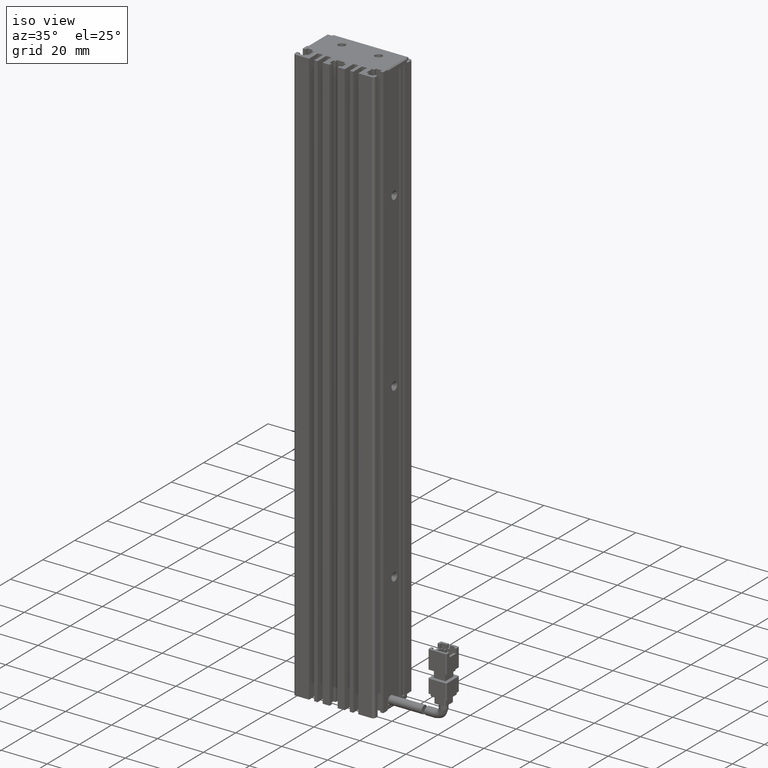
[diagram: clean part render]
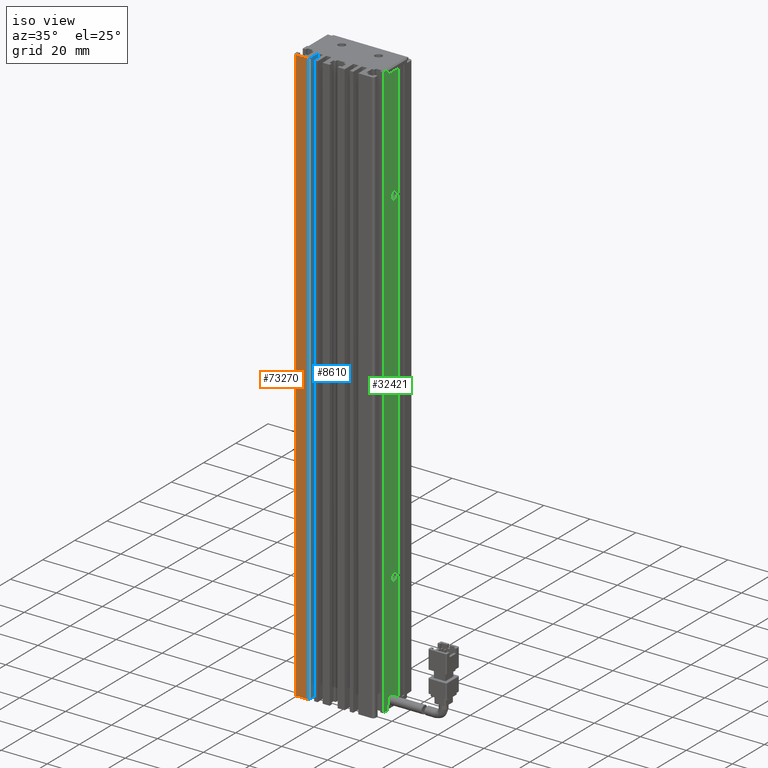
[diagram: same view with three faces highlighted in distinct colors, each labeled with its STEP entity id]
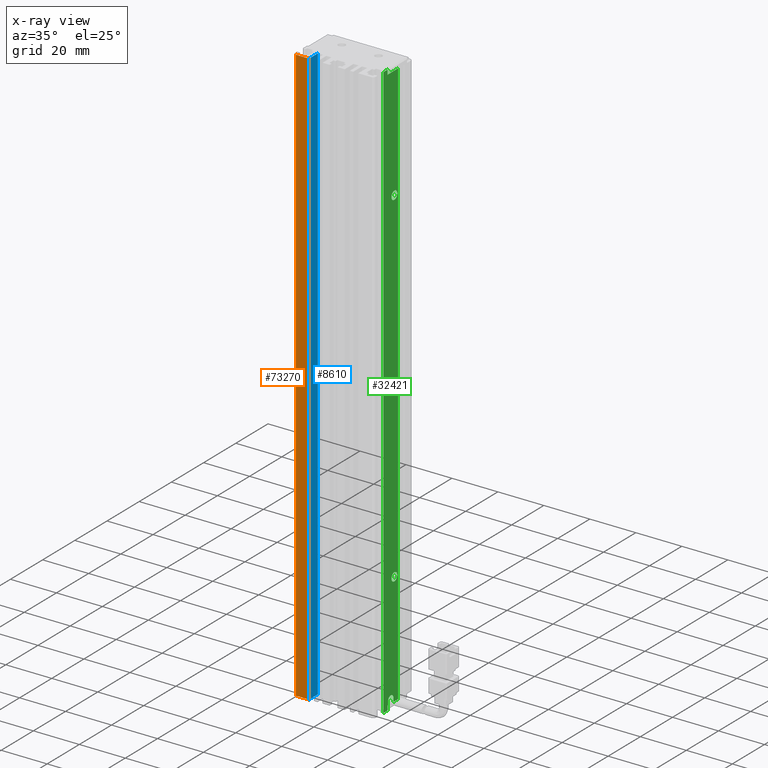
[diagram: x-ray of the same camera — body ghosted, the three highlighted faces saturated]
A machine part, iso view with three faces highlighted in distinct colors.
The next image is the same camera in x-ray (body ghosted, the three faces saturated) — at least one of them is partly hidden behind the body in this view.
Their STEP definitions:

[orange] entity #73270 — the highlighted planar face has unit normal (-0, -1, 0).
#3809 = PLANE ( 'NONE',  #49397 ) ;
#5972 = CARTESIAN_POINT ( 'NONE',  ( 40.92537974683542500, 10.99073232304837000, 10.99999999999999600 ) ) ;
#6949 = DIRECTION ( 'NONE',  ( 1.000000000000000000, 0.0000000000000000000, -0.0000000000000000000 ) ) ;
#7249 = LINE ( 'NONE', #41921, #34055 ) ;
#9640 = EDGE_LOOP ( 'NONE', ( #81355, #43454, #56949, #62938 ) ) ;
#13581 = CARTESIAN_POINT ( 'NONE',  ( 30.22537974683542900, 10.99073232304837000, -241.0000000000000000 ) ) ;
#19664 = DIRECTION ( 'NONE',  ( 0.0000000000000000000, -0.0000000000000000000, -1.000000000000000000 ) ) ;
#26720 = VECTOR ( 'NONE', #85367, 1000.000000000000000 ) ;
#34055 = VECTOR ( 'NONE', #19664, 1000.000000000000000 ) ;
#35323 = EDGE_CURVE ( 'NONE', #57898, #66859, #7249, .T. ) ;
#39197 = LINE ( 'NONE', #5972, #96451 ) ;
#41284 = VERTEX_POINT ( 'NONE', #13581 ) ;
#41921 = CARTESIAN_POINT ( 'NONE',  ( 24.42537974683542900, 10.99073232304837000, 10.99999999999999600 ) ) ;
#43454 = ORIENTED_EDGE ( 'NONE', *, *, #35323, .T. ) ;
#45196 = VERTEX_POINT ( 'NONE', #60195 ) ;
#49397 = AXIS2_PLACEMENT_3D ( 'NONE', #79851, #57373, #95158 ) ;
#55735 = CARTESIAN_POINT ( 'NONE',  ( 40.92537974683542500, 10.99073232304837000, -241.0000000000000000 ) ) ;
#56949 = ORIENTED_EDGE ( 'NONE', *, *, #70025, .T. ) ;
#57373 = DIRECTION ( 'NONE',  ( -7.380418287155808400E-032, -1.000000000000000000, 0.0000000000000000000 ) ) ;
#57898 = VERTEX_POINT ( 'NONE', #82885 ) ;
#60195 = CARTESIAN_POINT ( 'NONE',  ( 30.22537974683542900, 10.99073232304837000, 10.99999999999999600 ) ) ;
#62938 = ORIENTED_EDGE ( 'NONE', *, *, #95785, .T. ) ;
#66006 = VECTOR ( 'NONE', #76244, 1000.000000000000000 ) ;
#66859 = VERTEX_POINT ( 'NONE', #72472 ) ;
#68356 = EDGE_CURVE ( 'NONE', #57898, #45196, #39197, .T. ) ;
#69317 = LINE ( 'NONE', #75272, #66006 ) ;
#70025 = EDGE_CURVE ( 'NONE', #66859, #41284, #85101, .T. ) ;
#72472 = CARTESIAN_POINT ( 'NONE',  ( 24.42537974683542900, 10.99073232304837000, -241.0000000000000000 ) ) ;
#73270 = ADVANCED_FACE ( 'NONE', ( #78274 ), #3809, .T. ) ;
#75272 = CARTESIAN_POINT ( 'NONE',  ( 30.22537974683543300, 10.99073232304837000, 10.99999999999999600 ) ) ;
#76244 = DIRECTION ( 'NONE',  ( 0.0000000000000000000, 0.0000000000000000000, 1.000000000000000000 ) ) ;
#78274 = FACE_OUTER_BOUND ( 'NONE', #9640, .T. ) ;
#79851 = CARTESIAN_POINT ( 'NONE',  ( 40.92537974683542500, 10.99073232304837000, 10.99999999999999600 ) ) ;
#81355 = ORIENTED_EDGE ( 'NONE', *, *, #68356, .F. ) ;
#82885 = CARTESIAN_POINT ( 'NONE',  ( 24.42537974683542900, 10.99073232304837000, 10.99999999999999600 ) ) ;
#85101 = LINE ( 'NONE', #55735, #26720 ) ;
#85367 = DIRECTION ( 'NONE',  ( 1.000000000000000000, 0.0000000000000000000, -0.0000000000000000000 ) ) ;
#95158 = DIRECTION ( 'NONE',  ( 1.000000000000000000, -7.380418287155808400E-032, 0.0000000000000000000 ) ) ;
#95785 = EDGE_CURVE ( 'NONE', #41284, #45196, #69317, .T. ) ;
#96451 = VECTOR ( 'NONE', #6949, 1000.000000000000000 ) ;

[blue] entity #8610 — the highlighted planar face has unit normal (-1, -0, 0).
#530 = CARTESIAN_POINT ( 'NONE',  ( 30.22537974683543300, 16.49073232304836600, -241.0000000000000000 ) ) ;
#620 = CARTESIAN_POINT ( 'NONE',  ( 30.22537974683543300, 7.083797468354437600, 10.99999999999999600 ) ) ;
#5143 = EDGE_CURVE ( 'NONE', #41284, #60216, #14391, .T. ) ;
#5788 = ORIENTED_EDGE ( 'NONE', *, *, #5143, .T. ) ;
#7538 = DIRECTION ( 'NONE',  ( 7.380418287155808400E-032, -1.000000000000000000, 0.0000000000000000000 ) ) ;
#8610 = ADVANCED_FACE ( 'NONE', ( #89221 ), #95946, .F. ) ;
#8748 = AXIS2_PLACEMENT_3D ( 'NONE', #620, #14974, #7538 ) ;
#13446 = EDGE_LOOP ( 'NONE', ( #70273, #73957, #91631, #5788 ) ) ;
#13581 = CARTESIAN_POINT ( 'NONE',  ( 30.22537974683542900, 10.99073232304837000, -241.0000000000000000 ) ) ;
#14391 = LINE ( 'NONE', #29919, #83299 ) ;
#14974 = DIRECTION ( 'NONE',  ( -1.000000000000000000, -7.380418287155808400E-032, 0.0000000000000000000 ) ) ;
#23144 = VECTOR ( 'NONE', #69926, 1000.000000000000000 ) ;
#29919 = CARTESIAN_POINT ( 'NONE',  ( 30.22537974683543300, 7.083797468354437600, -241.0000000000000000 ) ) ;
#30965 = VERTEX_POINT ( 'NONE', #93098 ) ;
#33010 = EDGE_CURVE ( 'NONE', #45196, #30965, #84136, .T. ) ;
#41284 = VERTEX_POINT ( 'NONE', #13581 ) ;
#45196 = VERTEX_POINT ( 'NONE', #60195 ) ;
#52200 = DIRECTION ( 'NONE',  ( 0.0000000000000000000, 1.000000000000000000, 0.0000000000000000000 ) ) ;
#52429 = LINE ( 'NONE', #85943, #23144 ) ;
#54642 = DIRECTION ( 'NONE',  ( 0.0000000000000000000, 1.000000000000000000, 0.0000000000000000000 ) ) ;
#60195 = CARTESIAN_POINT ( 'NONE',  ( 30.22537974683542900, 10.99073232304837000, 10.99999999999999600 ) ) ;
#60216 = VERTEX_POINT ( 'NONE', #530 ) ;
#66006 = VECTOR ( 'NONE', #76244, 1000.000000000000000 ) ;
#69317 = LINE ( 'NONE', #75272, #66006 ) ;
#69926 = DIRECTION ( 'NONE',  ( 0.0000000000000000000, 0.0000000000000000000, 1.000000000000000000 ) ) ;
#70273 = ORIENTED_EDGE ( 'NONE', *, *, #90768, .T. ) ;
#73957 = ORIENTED_EDGE ( 'NONE', *, *, #33010, .F. ) ;
#75272 = CARTESIAN_POINT ( 'NONE',  ( 30.22537974683543300, 10.99073232304837000, 10.99999999999999600 ) ) ;
#76244 = DIRECTION ( 'NONE',  ( 0.0000000000000000000, 0.0000000000000000000, 1.000000000000000000 ) ) ;
#78337 = VECTOR ( 'NONE', #54642, 1000.000000000000000 ) ;
#83299 = VECTOR ( 'NONE', #52200, 1000.000000000000000 ) ;
#84136 = LINE ( 'NONE', #91446, #78337 ) ;
#85943 = CARTESIAN_POINT ( 'NONE',  ( 30.22537974683543300, 16.49073232304836600, 10.99999999999999600 ) ) ;
#89221 = FACE_OUTER_BOUND ( 'NONE', #13446, .T. ) ;
#90768 = EDGE_CURVE ( 'NONE', #60216, #30965, #52429, .T. ) ;
#91446 = CARTESIAN_POINT ( 'NONE',  ( 30.22537974683543300, 7.083797468354435800, 10.99999999999999600 ) ) ;
#91631 = ORIENTED_EDGE ( 'NONE', *, *, #95785, .F. ) ;
#93098 = CARTESIAN_POINT ( 'NONE',  ( 30.22537974683543300, 16.49073232304836600, 10.99999999999999600 ) ) ;
#95785 = EDGE_CURVE ( 'NONE', #41284, #45196, #69317, .T. ) ;
#95946 = PLANE ( 'NONE',  #8748 ) ;

[green] entity #32421 — the highlighted planar face has unit normal (-1, -0, 0).
#143 = VECTOR ( 'NONE', #95637, 1000.000000000000000 ) ;
#225 = EDGE_LOOP ( 'NONE', ( #82159, #19417 ) ) ;
#2408 = ORIENTED_EDGE ( 'NONE', *, *, #82344, .F. ) ;
#2536 = VERTEX_POINT ( 'NONE', #31297 ) ;
#2887 = LINE ( 'NONE', #7290, #21593 ) ;
#2966 = DIRECTION ( 'NONE',  ( -7.380418287155808400E-032, 1.000000000000000000, -0.0000000000000000000 ) ) ;
#4379 = CARTESIAN_POINT ( 'NONE',  ( 58.42537974683542500, 25.99073232304837700, 8.999999999999994700 ) ) ;
#4599 = AXIS2_PLACEMENT_3D ( 'NONE', #17917, #47060, #17602 ) ;
#5059 = DIRECTION ( 'NONE',  ( -0.0000000000000000000, 0.0000000000000000000, 1.000000000000000000 ) ) ;
#5267 = CIRCLE ( 'NONE', #14075, 1.800000000059753800 ) ;
#5900 = CARTESIAN_POINT ( 'NONE',  ( 58.42537974683542500, 16.79073232304836700, 10.99999999999999600 ) ) ;
#5932 = LINE ( 'NONE', #43375, #74814 ) ;
#6352 = EDGE_CURVE ( 'NONE', #49858, #54928, #5267, .T. ) ;
#6660 = DIRECTION ( 'NONE',  ( -0.0000000000000000000, -0.0000000000000000000, -1.000000000000000000 ) ) ;
#6822 = VECTOR ( 'NONE', #67963, 1000.000000000000000 ) ;
#7290 = CARTESIAN_POINT ( 'NONE',  ( 58.42537974683542500, 25.99073232304837700, 10.99999999999999600 ) ) ;
#8067 = VECTOR ( 'NONE', #57172, 1000.000000000000000 ) ;
#8104 = ORIENTED_EDGE ( 'NONE', *, *, #36036, .F. ) ;
#9155 = CARTESIAN_POINT ( 'NONE',  ( 58.42537974683542500, 19.49073232304837000, 10.99999999999999600 ) ) ;
#9678 = CARTESIAN_POINT ( 'NONE',  ( 58.42537974687635200, 23.69073232304837300, -113.1999999999402500 ) ) ;
#9891 = EDGE_CURVE ( 'NONE', #85435, #51382, #61922, .T. ) ;
#10178 = CARTESIAN_POINT ( 'NONE',  ( 58.42537974683542500, 7.083797468354437600, 8.999999999999994700 ) ) ;
#10685 = CARTESIAN_POINT ( 'NONE',  ( 58.42537974683542500, 25.99073232304837300, -239.0000000000000000 ) ) ;
#11316 = ORIENTED_EDGE ( 'NONE', *, *, #66654, .F. ) ;
#11344 = DIRECTION ( 'NONE',  ( 7.380418287155808400E-032, -1.000000000000000000, 0.0000000000000000000 ) ) ;
#11568 = ORIENTED_EDGE ( 'NONE', *, *, #30089, .F. ) ;
#12275 = CARTESIAN_POINT ( 'NONE',  ( 58.42537974683542500, 7.083797468354437600, -241.0000000000000000 ) ) ;
#14075 = AXIS2_PLACEMENT_3D ( 'NONE', #53574, #22831, #84871 ) ;
#14197 = CARTESIAN_POINT ( 'NONE',  ( 58.42537974683542500, 23.14073232304837200, -239.0000000000000000 ) ) ;
#16197 = CARTESIAN_POINT ( 'NONE',  ( 58.42537974687635200, 23.69073232304837300, -116.8000000000597500 ) ) ;
#17263 = CIRCLE ( 'NONE', #33036, 1.650000000000002100 ) ;
#17274 = EDGE_CURVE ( 'NONE', #89584, #72047, #33599, .T. ) ;
#17602 = DIRECTION ( 'NONE',  ( 0.0000000000000000000, 0.0000000000000000000, -1.000000000000000000 ) ) ;
#17668 = CARTESIAN_POINT ( 'NONE',  ( 58.42537974683542500, 19.49073232304837000, 10.99999999999999600 ) ) ;
#17917 = CARTESIAN_POINT ( 'NONE',  ( 58.42537974681950900, 23.69073232304837300, -40.00000000000002100 ) ) ;
#18260 = ORIENTED_EDGE ( 'NONE', *, *, #87505, .F. ) ;
#19417 = ORIENTED_EDGE ( 'NONE', *, *, #65948, .F. ) ;
#21119 = LINE ( 'NONE', #93894, #38651 ) ;
#21593 = VECTOR ( 'NONE', #6660, 1000.000000000000000 ) ;
#22831 = DIRECTION ( 'NONE',  ( 1.000000000000000000, 0.0000000000000000000, 0.0000000000000000000 ) ) ;
#23186 = CARTESIAN_POINT ( 'NONE',  ( 58.42537974681950900, 23.69073232304837300, -38.19999999998575600 ) ) ;
#23711 = CARTESIAN_POINT ( 'NONE',  ( 58.42537974683542500, 16.79073232304836700, 10.99999999999999600 ) ) ;
#24199 = ORIENTED_EDGE ( 'NONE', *, *, #17274, .T. ) ;
#24744 = ORIENTED_EDGE ( 'NONE', *, *, #28690, .T. ) ;
#27130 = EDGE_CURVE ( 'NONE', #85377, #72047, #17263, .T. ) ;
#27256 = VERTEX_POINT ( 'NONE', #80388 ) ;
#28689 = DIRECTION ( 'NONE',  ( 0.0000000000000000000, 0.0000000000000000000, -1.000000000000000000 ) ) ;
#28690 = EDGE_CURVE ( 'NONE', #42577, #57527, #68347, .T. ) ;
#29232 = DIRECTION ( 'NONE',  ( -1.000000000000000000, -7.380418287155808400E-032, 0.0000000000000000000 ) ) ;
#29274 = DIRECTION ( 'NONE',  ( 7.380418287155808400E-032, -1.000000000000000000, 0.0000000000000000000 ) ) ;
#29493 = AXIS2_PLACEMENT_3D ( 'NONE', #72784, #36563, #28689 ) ;
#29634 = AXIS2_PLACEMENT_3D ( 'NONE', #37000, #44522, #45499 ) ;
#30089 = EDGE_CURVE ( 'NONE', #89584, #2536, #5932, .T. ) ;
#30248 = VERTEX_POINT ( 'NONE', #23711 ) ;
#31219 = CARTESIAN_POINT ( 'NONE',  ( 58.42537974683542500, 16.79073232304836700, -241.0000000000000000 ) ) ;
#31297 = CARTESIAN_POINT ( 'NONE',  ( 58.42537974683542500, 19.49073232304837000, -239.0000000000000000 ) ) ;
#31578 = DIRECTION ( 'NONE',  ( 1.000000000000000000, 0.0000000000000000000, 0.0000000000000000000 ) ) ;
#31827 = FACE_BOUND ( 'NONE', #48184, .T. ) ;
#32390 = EDGE_LOOP ( 'NONE', ( #24199, #40518, #48520, #60061, #18260, #36322, #24744, #96805, #8104, #43904, #33016, #11568 ) ) ;
#32421 = ADVANCED_FACE ( 'NONE', ( #31827, #47085, #55249, #75022 ), #74630, .F. ) ;
#33016 = ORIENTED_EDGE ( 'NONE', *, *, #89642, .T. ) ;
#33036 = AXIS2_PLACEMENT_3D ( 'NONE', #64129, #41913, #63162 ) ;
#33599 = LINE ( 'NONE', #44158, #6822 ) ;
#33752 = VERTEX_POINT ( 'NONE', #4379 ) ;
#34722 = EDGE_CURVE ( 'NONE', #75603, #49187, #82206, .T. ) ;
#35021 = LINE ( 'NONE', #5900, #8067 ) ;
#36036 = EDGE_CURVE ( 'NONE', #51382, #30248, #35021, .T. ) ;
#36322 = ORIENTED_EDGE ( 'NONE', *, *, #40449, .F. ) ;
#36563 = DIRECTION ( 'NONE',  ( 1.000000000000000000, 0.0000000000000000000, 0.0000000000000000000 ) ) ;
#36785 = DIRECTION ( 'NONE',  ( 7.380418287155808400E-032, -1.000000000000000000, 0.0000000000000000000 ) ) ;
#37000 = CARTESIAN_POINT ( 'NONE',  ( 58.42537974681950900, 23.69073232304836900, -190.0000000000000300 ) ) ;
#37154 = EDGE_CURVE ( 'NONE', #49187, #75603, #92178, .T. ) ;
#38352 = CARTESIAN_POINT ( 'NONE',  ( 58.42537974683542500, 19.49073232304837000, -241.0000000000000000 ) ) ;
#38651 = VECTOR ( 'NONE', #11344, 1000.000000000000000 ) ;
#40449 = EDGE_CURVE ( 'NONE', #42577, #33752, #94421, .T. ) ;
#40518 = ORIENTED_EDGE ( 'NONE', *, *, #27130, .F. ) ;
#41047 = VERTEX_POINT ( 'NONE', #10685 ) ;
#41913 = DIRECTION ( 'NONE',  ( 1.000000000000000000, 5.687617954022314700E-016, 0.0000000000000000000 ) ) ;
#42577 = VERTEX_POINT ( 'NONE', #67042 ) ;
#42850 = CARTESIAN_POINT ( 'NONE',  ( 58.42537974683542500, 23.14073232304837200, -239.0000000000000000 ) ) ;
#43375 = CARTESIAN_POINT ( 'NONE',  ( 58.42537974683542500, 7.083797468354437600, -239.0000000000000000 ) ) ;
#43438 = CARTESIAN_POINT ( 'NONE',  ( 58.42537974683542500, 7.083797468354435800, 10.99999999999999600 ) ) ;
#43904 = ORIENTED_EDGE ( 'NONE', *, *, #9891, .F. ) ;
#44158 = CARTESIAN_POINT ( 'NONE',  ( 58.42537974683542500, 19.84073232304836400, -239.0000000000000300 ) ) ;
#44522 = DIRECTION ( 'NONE',  ( 1.000000000000000000, 0.0000000000000000000, 0.0000000000000000000 ) ) ;
#44953 = CARTESIAN_POINT ( 'NONE',  ( 58.42537974683542500, 7.083797468354437600, 10.99999999999999600 ) ) ;
#45499 = DIRECTION ( 'NONE',  ( 0.0000000000000000000, 0.0000000000000000000, -1.000000000000000000 ) ) ;
#46973 = LINE ( 'NONE', #9155, #50450 ) ;
#47060 = DIRECTION ( 'NONE',  ( 1.000000000000000000, 0.0000000000000000000, 0.0000000000000000000 ) ) ;
#47085 = FACE_BOUND ( 'NONE', #69535, .T. ) ;
#48184 = EDGE_LOOP ( 'NONE', ( #2408, #11316 ) ) ;
#48520 = ORIENTED_EDGE ( 'NONE', *, *, #65508, .T. ) ;
#48565 = VERTEX_POINT ( 'NONE', #72983 ) ;
#49187 = VERTEX_POINT ( 'NONE', #23186 ) ;
#49858 = VERTEX_POINT ( 'NONE', #16197 ) ;
#50450 = VECTOR ( 'NONE', #75387, 1000.000000000000000 ) ;
#50615 = CIRCLE ( 'NONE', #29493, 1.800000000059753800 ) ;
#51382 = VERTEX_POINT ( 'NONE', #31219 ) ;
#51642 = CIRCLE ( 'NONE', #91975, 1.799999999991502800 ) ;
#53574 = CARTESIAN_POINT ( 'NONE',  ( 58.42537974687635200, 23.69073232304837300, -115.0000000000000000 ) ) ;
#54928 = VERTEX_POINT ( 'NONE', #9678 ) ;
#55152 = DIRECTION ( 'NONE',  ( 0.0000000000000000000, 0.0000000000000000000, -1.000000000000000000 ) ) ;
#55249 = FACE_OUTER_BOUND ( 'NONE', #32390, .T. ) ;
#57172 = DIRECTION ( 'NONE',  ( 0.0000000000000000000, 0.0000000000000000000, 1.000000000000000000 ) ) ;
#57527 = VERTEX_POINT ( 'NONE', #17668 ) ;
#60061 = ORIENTED_EDGE ( 'NONE', *, *, #73187, .F. ) ;
#61922 = LINE ( 'NONE', #12275, #95788 ) ;
#62819 = ORIENTED_EDGE ( 'NONE', *, *, #37154, .F. ) ;
#63162 = DIRECTION ( 'NONE',  ( 0.0000000000000000000, 1.000000000000000000, 0.0000000000000000000 ) ) ;
#64129 = CARTESIAN_POINT ( 'NONE',  ( 58.42537974683542500, 21.49073232304837000, -237.4500000000000200 ) ) ;
#65508 = EDGE_CURVE ( 'NONE', #85377, #70706, #72810, .T. ) ;
#65948 = EDGE_CURVE ( 'NONE', #54928, #49858, #50615, .T. ) ;
#66654 = EDGE_CURVE ( 'NONE', #27256, #48565, #74819, .T. ) ;
#67042 = CARTESIAN_POINT ( 'NONE',  ( 58.42537974683542500, 19.49073232304837000, 8.999999999999994700 ) ) ;
#67963 = DIRECTION ( 'NONE',  ( -0.0000000000000000000, 0.0000000000000000000, 1.000000000000000000 ) ) ;
#68347 = LINE ( 'NONE', #94449, #90523 ) ;
#68712 = CARTESIAN_POINT ( 'NONE',  ( 58.42537974683542500, 23.14073232304837200, -237.4500000000000200 ) ) ;
#69535 = EDGE_LOOP ( 'NONE', ( #95149, #62819 ) ) ;
#70706 = VERTEX_POINT ( 'NONE', #42850 ) ;
#70983 = VECTOR ( 'NONE', #2966, 1000.000000000000000 ) ;
#71550 = CARTESIAN_POINT ( 'NONE',  ( 58.42537974683542500, 19.84073232304836400, -237.4500000000000200 ) ) ;
#72047 = VERTEX_POINT ( 'NONE', #71550 ) ;
#72784 = CARTESIAN_POINT ( 'NONE',  ( 58.42537974687635200, 23.69073232304837300, -115.0000000000000000 ) ) ;
#72810 = LINE ( 'NONE', #14197, #75150 ) ;
#72983 = CARTESIAN_POINT ( 'NONE',  ( 58.42537974681950900, 23.69073232304836900, -191.7999999999915400 ) ) ;
#73152 = CARTESIAN_POINT ( 'NONE',  ( 58.42537974683542500, 19.84073232304836400, -239.0000000000000000 ) ) ;
#73187 = EDGE_CURVE ( 'NONE', #41047, #70706, #21119, .T. ) ;
#74197 = DIRECTION ( 'NONE',  ( -0.0000000000000000000, 2.238352872228164500E-015, -1.000000000000000000 ) ) ;
#74630 = PLANE ( 'NONE',  #74641 ) ;
#74641 = AXIS2_PLACEMENT_3D ( 'NONE', #44953, #29232, #36785 ) ;
#74814 = VECTOR ( 'NONE', #29274, 1000.000000000000000 ) ;
#74819 = CIRCLE ( 'NONE', #29634, 1.799999999991502800 ) ;
#75022 = FACE_BOUND ( 'NONE', #225, .T. ) ;
#75150 = VECTOR ( 'NONE', #74197, 1000.000000000000000 ) ;
#75387 = DIRECTION ( 'NONE',  ( -0.0000000000000000000, 0.0000000000000000000, 1.000000000000000000 ) ) ;
#75603 = VERTEX_POINT ( 'NONE', #92235 ) ;
#76656 = CARTESIAN_POINT ( 'NONE',  ( 58.42537974681950900, 23.69073232304836900, -190.0000000000000300 ) ) ;
#79360 = AXIS2_PLACEMENT_3D ( 'NONE', #92931, #84477, #55152 ) ;
#79515 = DIRECTION ( 'NONE',  ( 7.380418287155808400E-032, -1.000000000000000000, 0.0000000000000000000 ) ) ;
#80388 = CARTESIAN_POINT ( 'NONE',  ( 58.42537974681950900, 23.69073232304836900, -188.2000000000085200 ) ) ;
#82159 = ORIENTED_EDGE ( 'NONE', *, *, #6352, .F. ) ;
#82206 = CIRCLE ( 'NONE', #79360, 1.800000000014262400 ) ;
#82344 = EDGE_CURVE ( 'NONE', #48565, #27256, #51642, .T. ) ;
#83846 = DIRECTION ( 'NONE',  ( 0.0000000000000000000, 0.0000000000000000000, -1.000000000000000000 ) ) ;
#84477 = DIRECTION ( 'NONE',  ( 1.000000000000000000, 0.0000000000000000000, 0.0000000000000000000 ) ) ;
#84871 = DIRECTION ( 'NONE',  ( 0.0000000000000000000, 0.0000000000000000000, -1.000000000000000000 ) ) ;
#85377 = VERTEX_POINT ( 'NONE', #68712 ) ;
#85435 = VERTEX_POINT ( 'NONE', #38352 ) ;
#87505 = EDGE_CURVE ( 'NONE', #33752, #41047, #2887, .T. ) ;
#89584 = VERTEX_POINT ( 'NONE', #73152 ) ;
#89642 = EDGE_CURVE ( 'NONE', #85435, #2536, #46973, .T. ) ;
#90523 = VECTOR ( 'NONE', #5059, 1000.000000000000000 ) ;
#91975 = AXIS2_PLACEMENT_3D ( 'NONE', #76656, #31578, #83846 ) ;
#92178 = CIRCLE ( 'NONE', #4599, 1.800000000014262400 ) ;
#92235 = CARTESIAN_POINT ( 'NONE',  ( 58.42537974681950900, 23.69073232304837300, -41.80000000001428600 ) ) ;
#92385 = LINE ( 'NONE', #43438, #143 ) ;
#92931 = CARTESIAN_POINT ( 'NONE',  ( 58.42537974681950900, 23.69073232304837300, -40.00000000000002100 ) ) ;
#93894 = CARTESIAN_POINT ( 'NONE',  ( 58.42537974683542500, 7.083797468354437600, -239.0000000000000000 ) ) ;
#94421 = LINE ( 'NONE', #10178, #70983 ) ;
#94449 = CARTESIAN_POINT ( 'NONE',  ( 58.42537974683542500, 19.49073232304837000, 10.99999999999999600 ) ) ;
#95149 = ORIENTED_EDGE ( 'NONE', *, *, #34722, .F. ) ;
#95637 = DIRECTION ( 'NONE',  ( 0.0000000000000000000, 1.000000000000000000, 0.0000000000000000000 ) ) ;
#95788 = VECTOR ( 'NONE', #79515, 1000.000000000000000 ) ;
#96674 = EDGE_CURVE ( 'NONE', #30248, #57527, #92385, .T. ) ;
#96805 = ORIENTED_EDGE ( 'NONE', *, *, #96674, .F. ) ;